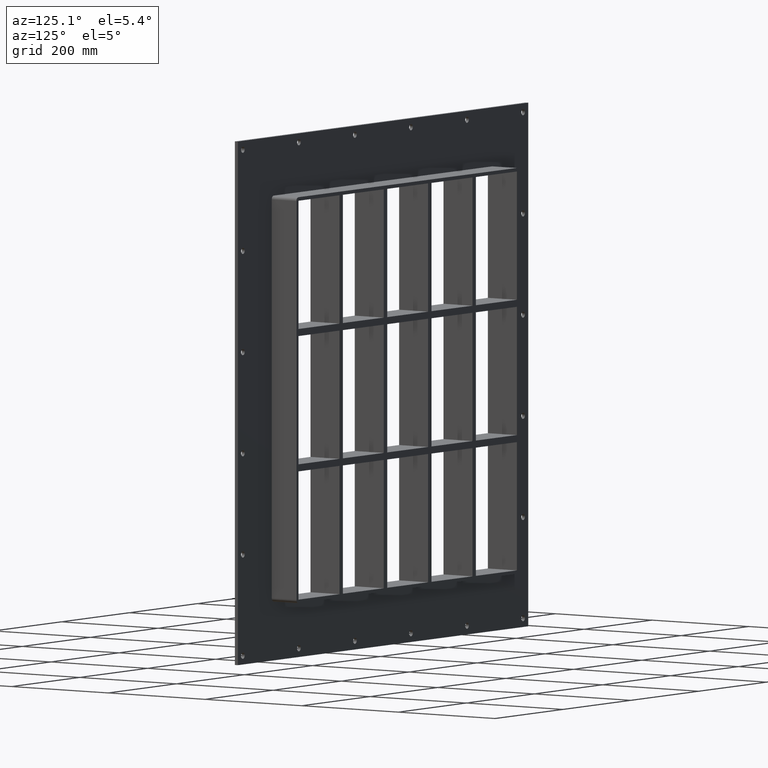
[diagram: clean part render]
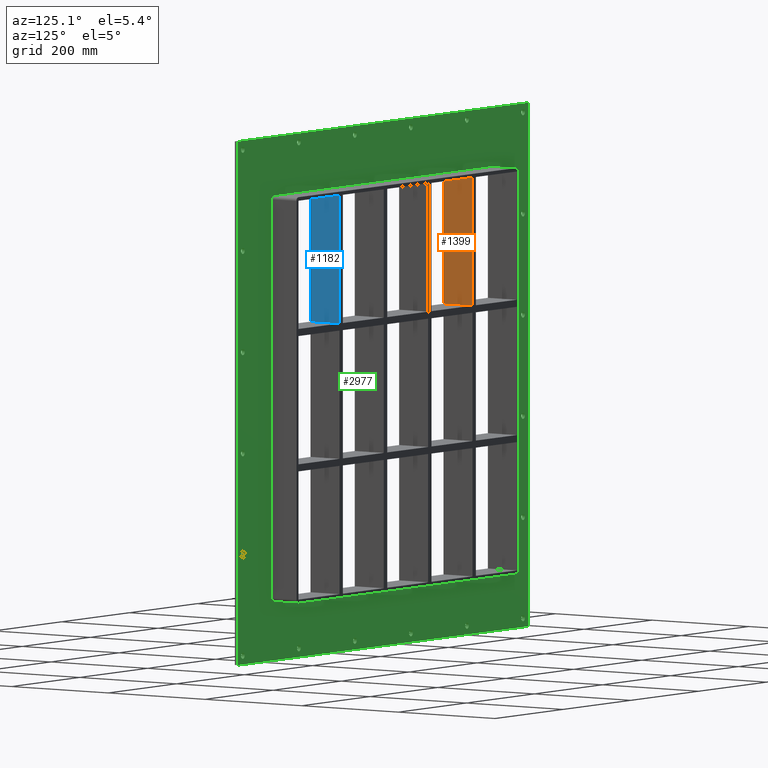
[diagram: same view with three faces highlighted in distinct colors, each labeled with its STEP entity id]
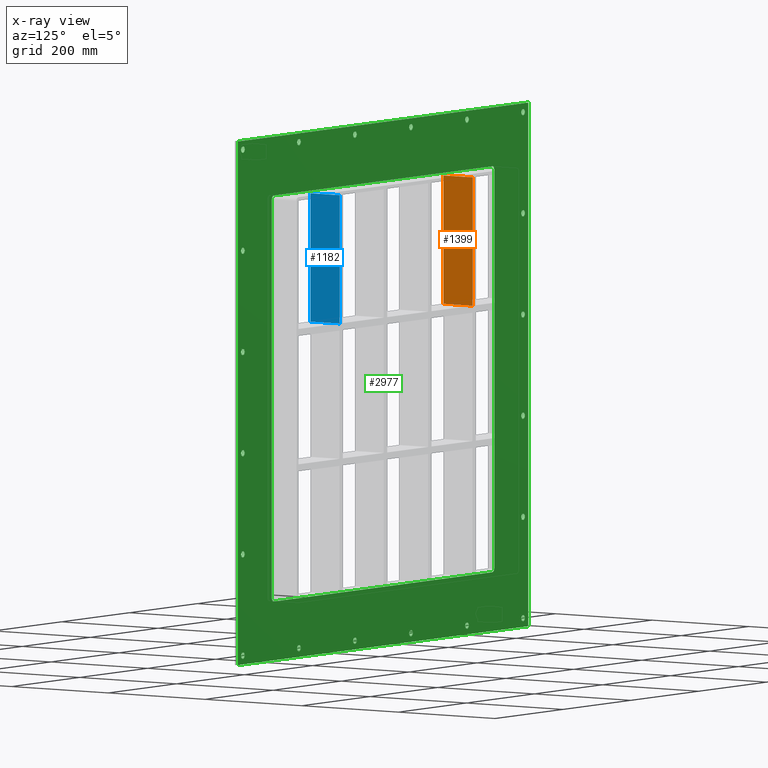
[diagram: x-ray of the same camera — body ghosted, the three highlighted faces saturated]
A machine part, auxiliary view with three faces highlighted in distinct colors.
The next image is the same camera in x-ray (body ghosted, the three faces saturated) — at least one of them is partly hidden behind the body in this view.
Their STEP definitions:

[orange] entity #1399 — the highlighted planar face has unit normal (1, 0, 0).
#923=CARTESIAN_POINT('',(-190.75000000000728,57.0,120.99999999999909));
#924=VERTEX_POINT('',#923);
#931=CARTESIAN_POINT('',(-190.75000000000728,-3.0,120.99999999999909));
#932=VERTEX_POINT('',#931);
#933=CARTESIAN_POINT('',(-190.75000000000728,-3.0,120.99999999999909));
#934=DIRECTION('',(0.0,1.0,0.0));
#935=VECTOR('',#934,60.0);
#936=LINE('',#933,#935);
#937=EDGE_CURVE('',#932,#924,#936,.T.);
#1369=CARTESIAN_POINT('',(-190.75000000000728,-3.0,339.00000000000006));
#1370=DIRECTION('',(1.0,0.0,0.0));
#1371=DIRECTION('',(0.0,0.0,-1.0));
#1372=AXIS2_PLACEMENT_3D('',#1369,#1370,#1371);
#1373=PLANE('',#1372);
#1374=ORIENTED_EDGE('',*,*,#937,.T.);
#1375=CARTESIAN_POINT('',(-190.75000000000728,57.0,339.00000000000006));
#1376=VERTEX_POINT('',#1375);
#1377=CARTESIAN_POINT('',(-190.75000000000728,57.0,339.00000000000006));
#1378=DIRECTION('',(0.0,0.0,-1.0));
#1379=VECTOR('',#1378,218.00000000000097);
#1380=LINE('',#1377,#1379);
#1381=EDGE_CURVE('',#1376,#924,#1380,.T.);
#1382=ORIENTED_EDGE('',*,*,#1381,.F.);
#1383=CARTESIAN_POINT('',(-190.75000000000728,-3.0,339.00000000000006));
#1384=VERTEX_POINT('',#1383);
#1385=CARTESIAN_POINT('',(-190.75000000000728,-3.0,339.00000000000006));
#1386=DIRECTION('',(0.0,1.0,0.0));
#1387=VECTOR('',#1386,60.000000000000007);
#1388=LINE('',#1385,#1387);
#1389=EDGE_CURVE('',#1384,#1376,#1388,.T.);
#1390=ORIENTED_EDGE('',*,*,#1389,.F.);
#1391=CARTESIAN_POINT('',(-190.75000000000728,-3.0,339.00000000000006));
#1392=DIRECTION('',(0.0,0.0,-1.0));
#1393=VECTOR('',#1392,218.00000000000097);
#1394=LINE('',#1391,#1393);
#1395=EDGE_CURVE('',#1384,#932,#1394,.T.);
#1396=ORIENTED_EDGE('',*,*,#1395,.T.);
#1397=EDGE_LOOP('',(#1374,#1382,#1390,#1396));
#1398=FACE_OUTER_BOUND('',#1397,.T.);
#1399=ADVANCED_FACE('',(#1398),#1373,.T.);

[blue] entity #1182 — the highlighted planar face has unit normal (1, 0, 0).
#873=CARTESIAN_POINT('',(200.74999999999278,-3.0,120.99999999999909));
#874=VERTEX_POINT('',#873);
#875=CARTESIAN_POINT('',(200.74999999999278,57.0,120.99999999999909));
#876=VERTEX_POINT('',#875);
#877=CARTESIAN_POINT('',(200.74999999999278,-3.0,120.99999999999909));
#878=DIRECTION('',(0.0,1.0,0.0));
#879=VECTOR('',#878,60.0);
#880=LINE('',#877,#879);
#881=EDGE_CURVE('',#874,#876,#880,.T.);
#1152=CARTESIAN_POINT('',(200.74999999999278,-3.0,339.00000000000006));
#1153=DIRECTION('',(1.0,0.0,0.0));
#1154=DIRECTION('',(0.0,0.0,-1.0));
#1155=AXIS2_PLACEMENT_3D('',#1152,#1153,#1154);
#1156=PLANE('',#1155);
#1157=ORIENTED_EDGE('',*,*,#881,.T.);
#1158=CARTESIAN_POINT('',(200.74999999999278,57.0,339.00000000000006));
#1159=VERTEX_POINT('',#1158);
#1160=CARTESIAN_POINT('',(200.74999999999278,57.0,339.00000000000006));
#1161=DIRECTION('',(0.0,0.0,-1.0));
#1162=VECTOR('',#1161,218.00000000000097);
#1163=LINE('',#1160,#1162);
#1164=EDGE_CURVE('',#1159,#876,#1163,.T.);
#1165=ORIENTED_EDGE('',*,*,#1164,.F.);
#1166=CARTESIAN_POINT('',(200.74999999999278,-3.0,339.00000000000006));
#1167=VERTEX_POINT('',#1166);
#1168=CARTESIAN_POINT('',(200.74999999999278,-3.0,339.00000000000006));
#1169=DIRECTION('',(0.0,1.0,0.0));
#1170=VECTOR('',#1169,60.000000000000007);
#1171=LINE('',#1168,#1170);
#1172=EDGE_CURVE('',#1167,#1159,#1171,.T.);
#1173=ORIENTED_EDGE('',*,*,#1172,.F.);
#1174=CARTESIAN_POINT('',(200.74999999999278,-3.0,339.00000000000006));
#1175=DIRECTION('',(0.0,0.0,-1.0));
#1176=VECTOR('',#1175,218.00000000000097);
#1177=LINE('',#1174,#1176);
#1178=EDGE_CURVE('',#1167,#874,#1177,.T.);
#1179=ORIENTED_EDGE('',*,*,#1178,.T.);
#1180=EDGE_LOOP('',(#1157,#1165,#1173,#1179));
#1181=FACE_OUTER_BOUND('',#1180,.T.);
#1182=ADVANCED_FACE('',(#1181),#1156,.T.);

[green] entity #2977 — the highlighted planar face has unit normal (0, 1, 0).
#73=CARTESIAN_POINT('',(-417.50000000000011,5.999999999999943,-430.0));
#74=VERTEX_POINT('',#73);
#75=CARTESIAN_POINT('',(-412.25000000000017,5.999999999999943,-430.0));
#76=DIRECTION('',(0.0,-1.0,0.0));
#77=DIRECTION('',(1.0,0.0,0.0));
#78=AXIS2_PLACEMENT_3D('',#75,#76,#77);
#79=CIRCLE('',#78,5.25);
#80=EDGE_CURVE('',#74,#74,#79,.T.);
#101=CARTESIAN_POINT('',(407.0,5.999999999999943,-257.99999999999994));
#102=VERTEX_POINT('',#101);
#103=CARTESIAN_POINT('',(412.25,5.999999999999943,-257.99999999999994));
#104=DIRECTION('',(0.0,-1.0,0.0));
#105=DIRECTION('',(1.0,0.0,0.0));
#106=AXIS2_PLACEMENT_3D('',#103,#104,#105);
#107=CIRCLE('',#106,5.25);
#108=EDGE_CURVE('',#102,#102,#107,.T.);
#129=CARTESIAN_POINT('',(-417.50000000000011,5.999999999999943,-257.99999999999994));
#130=VERTEX_POINT('',#129);
#131=CARTESIAN_POINT('',(-412.25000000000017,5.999999999999943,-257.99999999999994));
#132=DIRECTION('',(0.0,-1.0,0.0));
#133=DIRECTION('',(1.0,0.0,0.0));
#134=AXIS2_PLACEMENT_3D('',#131,#132,#133);
#135=CIRCLE('',#134,5.25);
#136=EDGE_CURVE('',#130,#130,#135,.T.);
#157=CARTESIAN_POINT('',(407.0,5.999999999999943,-85.999999999999915));
#158=VERTEX_POINT('',#157);
#159=CARTESIAN_POINT('',(412.25,5.999999999999943,-85.999999999999915));
#160=DIRECTION('',(0.0,-1.0,0.0));
#161=DIRECTION('',(1.0,0.0,0.0));
#162=AXIS2_PLACEMENT_3D('',#159,#160,#161);
#163=CIRCLE('',#162,5.25);
#164=EDGE_CURVE('',#158,#158,#163,.T.);
#185=CARTESIAN_POINT('',(-417.50000000000011,5.999999999999943,-85.999999999999915));
#186=VERTEX_POINT('',#185);
#187=CARTESIAN_POINT('',(-412.25000000000017,5.999999999999943,-85.999999999999915));
#188=DIRECTION('',(0.0,-1.0,0.0));
#189=DIRECTION('',(1.0,0.0,0.0));
#190=AXIS2_PLACEMENT_3D('',#187,#188,#189);
#191=CIRCLE('',#190,5.25);
#192=EDGE_CURVE('',#186,#186,#191,.T.);
#213=CARTESIAN_POINT('',(407.0,5.999999999999943,86.000000000000014));
#214=VERTEX_POINT('',#213);
#215=CARTESIAN_POINT('',(412.25,5.999999999999943,86.000000000000014));
#216=DIRECTION('',(0.0,-1.0,0.0));
#217=DIRECTION('',(1.0,0.0,0.0));
#218=AXIS2_PLACEMENT_3D('',#215,#216,#217);
#219=CIRCLE('',#218,5.25);
#220=EDGE_CURVE('',#214,#214,#219,.T.);
#241=CARTESIAN_POINT('',(-417.50000000000011,5.999999999999943,86.000000000000014));
#242=VERTEX_POINT('',#241);
#243=CARTESIAN_POINT('',(-412.25000000000017,5.999999999999943,86.000000000000014));
#244=DIRECTION('',(0.0,-1.0,0.0));
#245=DIRECTION('',(1.0,0.0,0.0));
#246=AXIS2_PLACEMENT_3D('',#243,#244,#245);
#247=CIRCLE('',#246,5.25);
#248=EDGE_CURVE('',#242,#242,#247,.T.);
#269=CARTESIAN_POINT('',(407.0,5.999999999999943,258.0));
#270=VERTEX_POINT('',#269);
#271=CARTESIAN_POINT('',(412.25,5.999999999999943,258.0));
#272=DIRECTION('',(0.0,-1.0,0.0));
#273=DIRECTION('',(1.0,0.0,0.0));
#274=AXIS2_PLACEMENT_3D('',#271,#272,#273);
#275=CIRCLE('',#274,5.25);
#276=EDGE_CURVE('',#270,#270,#275,.T.);
#297=CARTESIAN_POINT('',(-417.50000000000011,5.999999999999943,258.0));
#298=VERTEX_POINT('',#297);
#299=CARTESIAN_POINT('',(-412.25000000000017,5.999999999999943,258.0));
#300=DIRECTION('',(0.0,-1.0,0.0));
#301=DIRECTION('',(1.0,0.0,0.0));
#302=AXIS2_PLACEMENT_3D('',#299,#300,#301);
#303=CIRCLE('',#302,5.25);
#304=EDGE_CURVE('',#298,#298,#303,.T.);
#325=CARTESIAN_POINT('',(-252.60000000000005,5.999999999999943,430.0));
#326=VERTEX_POINT('',#325);
#327=CARTESIAN_POINT('',(-247.35000000000008,5.999999999999943,430.0));
#328=DIRECTION('',(0.0,-1.0,0.0));
#329=DIRECTION('',(1.0,0.0,0.0));
#330=AXIS2_PLACEMENT_3D('',#327,#328,#329);
#331=CIRCLE('',#330,5.25);
#332=EDGE_CURVE('',#326,#326,#331,.T.);
#353=CARTESIAN_POINT('',(-252.60000000000005,5.999999999999943,-430.0));
#354=VERTEX_POINT('',#353);
#355=CARTESIAN_POINT('',(-247.35000000000008,5.999999999999943,-430.0));
#356=DIRECTION('',(0.0,-1.0,0.0));
#357=DIRECTION('',(1.0,0.0,0.0));
#358=AXIS2_PLACEMENT_3D('',#355,#356,#357);
#359=CIRCLE('',#358,5.25);
#360=EDGE_CURVE('',#354,#354,#359,.T.);
#381=CARTESIAN_POINT('',(-87.700000000000031,5.999999999999943,430.0));
#382=VERTEX_POINT('',#381);
#383=CARTESIAN_POINT('',(-82.450000000000045,5.999999999999943,430.0));
#384=DIRECTION('',(0.0,-1.0,0.0));
#385=DIRECTION('',(1.0,0.0,0.0));
#386=AXIS2_PLACEMENT_3D('',#383,#384,#385);
#387=CIRCLE('',#386,5.25);
#388=EDGE_CURVE('',#382,#382,#387,.T.);
#409=CARTESIAN_POINT('',(-87.700000000000031,5.999999999999943,-430.0));
#410=VERTEX_POINT('',#409);
#411=CARTESIAN_POINT('',(-82.450000000000045,5.999999999999943,-430.0));
#412=DIRECTION('',(0.0,-1.0,0.0));
#413=DIRECTION('',(1.0,0.0,0.0));
#414=AXIS2_PLACEMENT_3D('',#411,#412,#413);
#415=CIRCLE('',#414,5.25);
#416=EDGE_CURVE('',#410,#410,#415,.T.);
#437=CARTESIAN_POINT('',(77.199999999999989,5.999999999999943,430.0));
#438=VERTEX_POINT('',#437);
#439=CARTESIAN_POINT('',(82.449999999999974,5.999999999999943,430.0));
#440=DIRECTION('',(0.0,-1.0,0.0));
#441=DIRECTION('',(1.0,0.0,0.0));
#442=AXIS2_PLACEMENT_3D('',#439,#440,#441);
#443=CIRCLE('',#442,5.25);
#444=EDGE_CURVE('',#438,#438,#443,.T.);
#465=CARTESIAN_POINT('',(77.199999999999989,5.999999999999943,-430.0));
#466=VERTEX_POINT('',#465);
#467=CARTESIAN_POINT('',(82.449999999999974,5.999999999999943,-430.0));
#468=DIRECTION('',(0.0,-1.0,0.0));
#469=DIRECTION('',(1.0,0.0,0.0));
#470=AXIS2_PLACEMENT_3D('',#467,#468,#469);
#471=CIRCLE('',#470,5.25);
#472=EDGE_CURVE('',#466,#466,#471,.T.);
#493=CARTESIAN_POINT('',(242.10000000000002,5.999999999999943,430.0));
#494=VERTEX_POINT('',#493);
#495=CARTESIAN_POINT('',(247.34999999999999,5.999999999999943,430.0));
#496=DIRECTION('',(0.0,-1.0,0.0));
#497=DIRECTION('',(1.0,0.0,0.0));
#498=AXIS2_PLACEMENT_3D('',#495,#496,#497);
#499=CIRCLE('',#498,5.25);
#500=EDGE_CURVE('',#494,#494,#499,.T.);
#521=CARTESIAN_POINT('',(242.10000000000002,5.999999999999943,-430.0));
#522=VERTEX_POINT('',#521);
#523=CARTESIAN_POINT('',(247.34999999999999,5.999999999999943,-430.0));
#524=DIRECTION('',(0.0,-1.0,0.0));
#525=DIRECTION('',(1.0,0.0,0.0));
#526=AXIS2_PLACEMENT_3D('',#523,#524,#525);
#527=CIRCLE('',#526,5.25);
#528=EDGE_CURVE('',#522,#522,#527,.T.);
#549=CARTESIAN_POINT('',(407.0,5.999999999999943,-430.0));
#550=VERTEX_POINT('',#549);
#551=CARTESIAN_POINT('',(412.25,5.999999999999943,-430.0));
#552=DIRECTION('',(0.0,-1.0,0.0));
#553=DIRECTION('',(1.0,0.0,0.0));
#554=AXIS2_PLACEMENT_3D('',#551,#552,#553);
#555=CIRCLE('',#554,5.25);
#556=EDGE_CURVE('',#550,#550,#555,.T.);
#577=CARTESIAN_POINT('',(-417.50000000000011,5.999999999999943,430.0));
#578=VERTEX_POINT('',#577);
#579=CARTESIAN_POINT('',(-412.25000000000017,5.999999999999943,430.0));
#580=DIRECTION('',(0.0,-1.0,0.0));
#581=DIRECTION('',(1.0,0.0,0.0));
#582=AXIS2_PLACEMENT_3D('',#579,#580,#581);
#583=CIRCLE('',#582,5.25);
#584=EDGE_CURVE('',#578,#578,#583,.T.);
#605=CARTESIAN_POINT('',(407.0,5.999999999999943,430.0));
#606=VERTEX_POINT('',#605);
#607=CARTESIAN_POINT('',(412.25,5.999999999999943,430.0));
#608=DIRECTION('',(0.0,-1.0,0.0));
#609=DIRECTION('',(1.0,0.0,0.0));
#610=AXIS2_PLACEMENT_3D('',#607,#608,#609);
#611=CIRCLE('',#610,5.25);
#612=EDGE_CURVE('',#606,#606,#611,.T.);
#2808=CARTESIAN_POINT('',(0.0,6.000000000000001,1.955062E-014));
#2809=DIRECTION('',(0.0,1.0,0.0));
#2810=DIRECTION('',(0.0,0.0,1.0));
#2811=AXIS2_PLACEMENT_3D('',#2808,#2809,#2810);
#2812=PLANE('',#2811);
#2813=CARTESIAN_POINT('',(-427.25,6.000000000000001,445.00000000000006));
#2814=VERTEX_POINT('',#2813);
#2815=CARTESIAN_POINT('',(427.25,6.000000000000001,445.00000000000006));
#2816=VERTEX_POINT('',#2815);
#2817=CARTESIAN_POINT('',(-427.25,6.000000000000001,445.00000000000006));
#2818=DIRECTION('',(1.0,0.0,0.0));
#2819=VECTOR('',#2818,854.5);
#2820=LINE('',#2817,#2819);
#2821=EDGE_CURVE('',#2814,#2816,#2820,.T.);
#2822=ORIENTED_EDGE('',*,*,#2821,.T.);
#2823=CARTESIAN_POINT('',(427.25,6.000000000000001,-444.99999999999994));
#2824=VERTEX_POINT('',#2823);
#2825=CARTESIAN_POINT('',(427.25,6.000000000000001,445.00000000000006));
#2826=DIRECTION('',(0.0,0.0,-1.0));
#2827=VECTOR('',#2826,890.0);
#2828=LINE('',#2825,#2827);
#2829=EDGE_CURVE('',#2816,#2824,#2828,.T.);
#2830=ORIENTED_EDGE('',*,*,#2829,.T.);
#2831=CARTESIAN_POINT('',(-427.25,6.000000000000001,-444.99999999999994));
#2832=VERTEX_POINT('',#2831);
#2833=CARTESIAN_POINT('',(427.25,6.000000000000001,-445.0));
#2834=DIRECTION('',(-1.0,0.0,0.0));
#2835=VECTOR('',#2834,854.5);
#2836=LINE('',#2833,#2835);
#2837=EDGE_CURVE('',#2824,#2832,#2836,.T.);
#2838=ORIENTED_EDGE('',*,*,#2837,.T.);
#2839=CARTESIAN_POINT('',(-427.25,6.000000000000001,-445.0));
#2840=DIRECTION('',(0.0,0.0,1.0));
#2841=VECTOR('',#2840,890.0);
#2842=LINE('',#2839,#2841);
#2843=EDGE_CURVE('',#2832,#2814,#2842,.T.);
#2844=ORIENTED_EDGE('',*,*,#2843,.T.);
#2845=EDGE_LOOP('',(#2822,#2830,#2838,#2844));
#2846=FACE_OUTER_BOUND('',#2845,.T.);
#2847=ORIENTED_EDGE('',*,*,#80,.T.);
#2848=EDGE_LOOP('',(#2847));
#2849=FACE_BOUND('',#2848,.T.);
#2850=ORIENTED_EDGE('',*,*,#108,.T.);
#2851=EDGE_LOOP('',(#2850));
#2852=FACE_BOUND('',#2851,.T.);
#2853=ORIENTED_EDGE('',*,*,#136,.T.);
#2854=EDGE_LOOP('',(#2853));
#2855=FACE_BOUND('',#2854,.T.);
#2856=ORIENTED_EDGE('',*,*,#164,.T.);
#2857=EDGE_LOOP('',(#2856));
#2858=FACE_BOUND('',#2857,.T.);
#2859=ORIENTED_EDGE('',*,*,#192,.T.);
#2860=EDGE_LOOP('',(#2859));
#2861=FACE_BOUND('',#2860,.T.);
#2862=ORIENTED_EDGE('',*,*,#220,.T.);
#2863=EDGE_LOOP('',(#2862));
#2864=FACE_BOUND('',#2863,.T.);
#2865=ORIENTED_EDGE('',*,*,#248,.T.);
#2866=EDGE_LOOP('',(#2865));
#2867=FACE_BOUND('',#2866,.T.);
#2868=ORIENTED_EDGE('',*,*,#276,.T.);
#2869=EDGE_LOOP('',(#2868));
#2870=FACE_BOUND('',#2869,.T.);
#2871=ORIENTED_EDGE('',*,*,#304,.T.);
#2872=EDGE_LOOP('',(#2871));
#2873=FACE_BOUND('',#2872,.T.);
#2874=ORIENTED_EDGE('',*,*,#332,.T.);
#2875=EDGE_LOOP('',(#2874));
#2876=FACE_BOUND('',#2875,.T.);
#2877=ORIENTED_EDGE('',*,*,#360,.T.);
#2878=EDGE_LOOP('',(#2877));
#2879=FACE_BOUND('',#2878,.T.);
#2880=ORIENTED_EDGE('',*,*,#388,.T.);
#2881=EDGE_LOOP('',(#2880));
#2882=FACE_BOUND('',#2881,.T.);
#2883=ORIENTED_EDGE('',*,*,#416,.T.);
#2884=EDGE_LOOP('',(#2883));
#2885=FACE_BOUND('',#2884,.T.);
#2886=ORIENTED_EDGE('',*,*,#444,.T.);
#2887=EDGE_LOOP('',(#2886));
#2888=FACE_BOUND('',#2887,.T.);
#2889=ORIENTED_EDGE('',*,*,#472,.T.);
#2890=EDGE_LOOP('',(#2889));
#2891=FACE_BOUND('',#2890,.T.);
#2892=ORIENTED_EDGE('',*,*,#500,.T.);
#2893=EDGE_LOOP('',(#2892));
#2894=FACE_BOUND('',#2893,.T.);
#2895=ORIENTED_EDGE('',*,*,#528,.T.);
#2896=EDGE_LOOP('',(#2895));
#2897=FACE_BOUND('',#2896,.T.);
#2898=ORIENTED_EDGE('',*,*,#556,.T.);
#2899=EDGE_LOOP('',(#2898));
#2900=FACE_BOUND('',#2899,.T.);
#2901=ORIENTED_EDGE('',*,*,#584,.T.);
#2902=EDGE_LOOP('',(#2901));
#2903=FACE_BOUND('',#2902,.T.);
#2904=ORIENTED_EDGE('',*,*,#612,.T.);
#2905=EDGE_LOOP('',(#2904));
#2906=FACE_BOUND('',#2905,.T.);
#2907=CARTESIAN_POINT('',(-327.25,6.000000000000001,339.00000000000006));
#2908=VERTEX_POINT('',#2907);
#2909=CARTESIAN_POINT('',(-321.25,6.000000000000001,345.00000000000006));
#2910=VERTEX_POINT('',#2909);
#2911=CARTESIAN_POINT('',(-321.25,6.000000000000001,339.00000000000006));
#2912=DIRECTION('',(0.0,1.0,0.0));
#2913=DIRECTION('',(-0.707106781186548,0.0,0.707106781186548));
#2914=AXIS2_PLACEMENT_3D('',#2911,#2912,#2913);
#2915=CIRCLE('',#2914,6.000000000000002);
#2916=EDGE_CURVE('',#2908,#2910,#2915,.T.);
#2917=ORIENTED_EDGE('',*,*,#2916,.F.);
#2918=CARTESIAN_POINT('',(-327.25,6.000000000000001,-339.00000000000006));
#2919=VERTEX_POINT('',#2918);
#2920=CARTESIAN_POINT('',(-327.25,6.000000000000001,-339.00000000000006));
#2921=DIRECTION('',(0.0,0.0,1.0));
#2922=VECTOR('',#2921,678.0);
#2923=LINE('',#2920,#2922);
#2924=EDGE_CURVE('',#2919,#2908,#2923,.T.);
#2925=ORIENTED_EDGE('',*,*,#2924,.F.);
#2926=CARTESIAN_POINT('',(-321.25,6.000000000000001,-345.00000000000006));
#2927=VERTEX_POINT('',#2926);
#2928=CARTESIAN_POINT('',(-321.25,6.000000000000001,-339.00000000000006));
#2929=DIRECTION('',(0.0,1.0,0.0));
#2930=DIRECTION('',(-0.707106781186548,0.0,-0.707106781186548));
#2931=AXIS2_PLACEMENT_3D('',#2928,#2929,#2930);
#2932=CIRCLE('',#2931,6.000000000000002);
#2933=EDGE_CURVE('',#2927,#2919,#2932,.T.);
#2934=ORIENTED_EDGE('',*,*,#2933,.F.);
#2935=CARTESIAN_POINT('',(321.25,6.000000000000001,-345.00000000000006));
#2936=VERTEX_POINT('',#2935);
#2937=CARTESIAN_POINT('',(321.25,6.000000000000001,-345.00000000000006));
#2938=DIRECTION('',(-1.0,0.0,0.0));
#2939=VECTOR('',#2938,642.5);
#2940=LINE('',#2937,#2939);
#2941=EDGE_CURVE('',#2936,#2927,#2940,.T.);
#2942=ORIENTED_EDGE('',*,*,#2941,.F.);
#2943=CARTESIAN_POINT('',(327.25,6.000000000000001,-339.00000000000006));
#2944=VERTEX_POINT('',#2943);
#2945=CARTESIAN_POINT('',(321.25,6.000000000000001,-339.00000000000006));
#2946=DIRECTION('',(0.0,1.0,0.0));
#2947=DIRECTION('',(0.707106781186548,0.0,-0.707106781186548));
#2948=AXIS2_PLACEMENT_3D('',#2945,#2946,#2947);
#2949=CIRCLE('',#2948,6.000000000000002);
#2950=EDGE_CURVE('',#2944,#2936,#2949,.T.);
#2951=ORIENTED_EDGE('',*,*,#2950,.F.);
#2952=CARTESIAN_POINT('',(327.25,6.000000000000001,339.00000000000006));
#2953=VERTEX_POINT('',#2952);
#2954=CARTESIAN_POINT('',(327.25,6.000000000000001,339.00000000000006));
#2955=DIRECTION('',(0.0,0.0,-1.0));
#2956=VECTOR('',#2955,678.0);
#2957=LINE('',#2954,#2956);
#2958=EDGE_CURVE('',#2953,#2944,#2957,.T.);
#2959=ORIENTED_EDGE('',*,*,#2958,.F.);
#2960=CARTESIAN_POINT('',(321.25,6.000000000000001,345.00000000000006));
#2961=VERTEX_POINT('',#2960);
#2962=CARTESIAN_POINT('',(321.25,6.000000000000001,339.00000000000006));
#2963=DIRECTION('',(0.0,1.0,0.0));
#2964=DIRECTION('',(0.707106781186548,0.0,0.707106781186548));
#2965=AXIS2_PLACEMENT_3D('',#2962,#2963,#2964);
#2966=CIRCLE('',#2965,6.000000000000002);
#2967=EDGE_CURVE('',#2961,#2953,#2966,.T.);
#2968=ORIENTED_EDGE('',*,*,#2967,.F.);
#2969=CARTESIAN_POINT('',(-321.25,6.000000000000001,345.00000000000006));
#2970=DIRECTION('',(1.0,0.0,0.0));
#2971=VECTOR('',#2970,642.5);
#2972=LINE('',#2969,#2971);
#2973=EDGE_CURVE('',#2910,#2961,#2972,.T.);
#2974=ORIENTED_EDGE('',*,*,#2973,.F.);
#2975=EDGE_LOOP('',(#2917,#2925,#2934,#2942,#2951,#2959,#2968,#2974));
#2976=FACE_BOUND('',#2975,.T.);
#2977=ADVANCED_FACE('',(#2846,#2849,#2852,#2855,#2858,#2861,#2864,#2867,#2870,#2873,#2876,#2879,#2882,#2885,#2888,#2891,#2894,#2897,#2900,#2903,#2906,#2976),#2812,.T.);